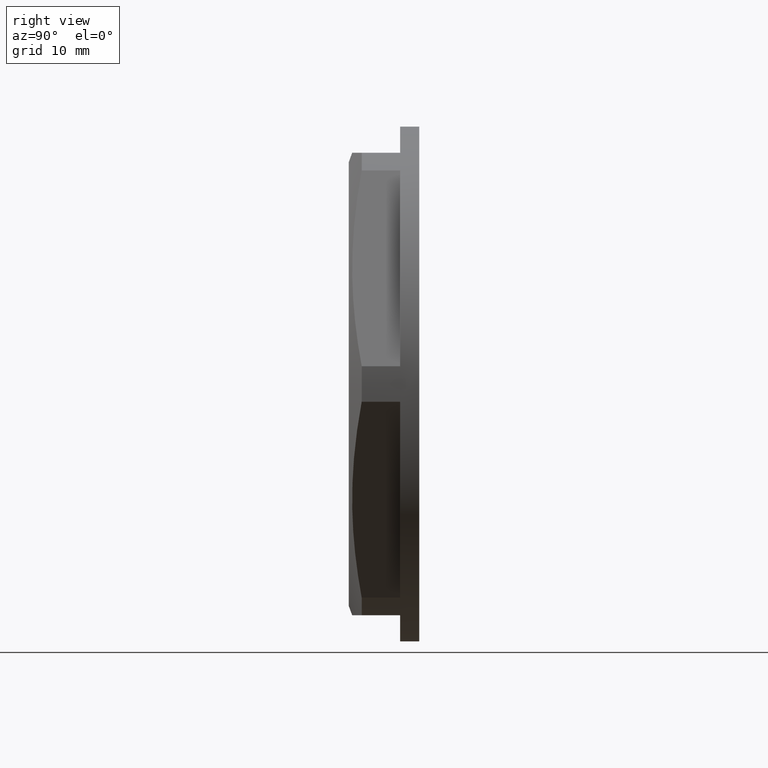
[diagram: clean part render]
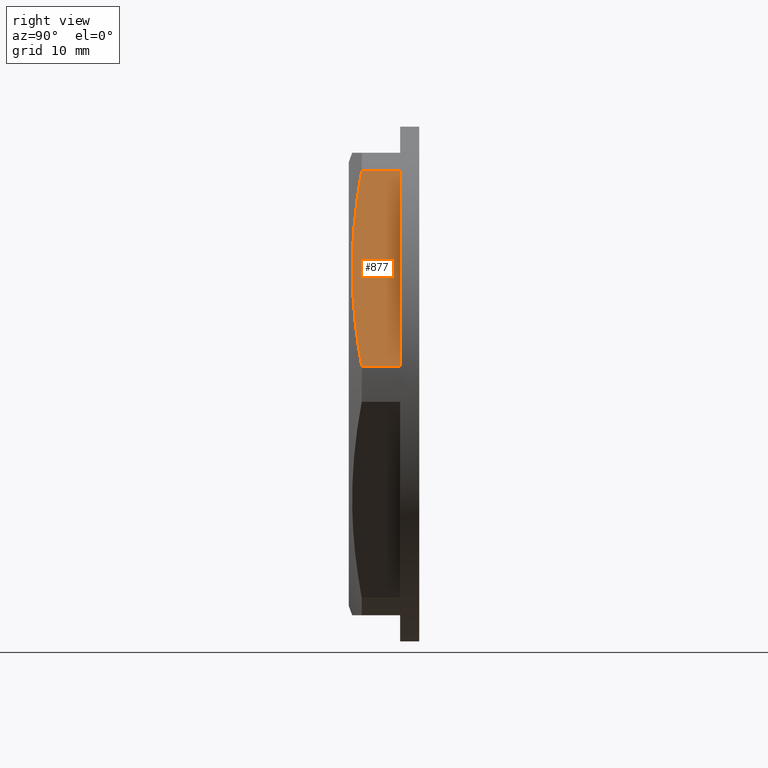
[diagram: same view with one face highlighted and labeled with its STEP entity id]
A machine part, right view. The second image highlights one B-rep face of the part: STEP entity #877.
In plain terms, the highlighted planar face has unit normal (0.866, -0, 0.5).
Its self-contained STEP definition (entity closure, byte-faithful):
#108 = FACE_OUTER_BOUND ( 'NONE', #2493, .T. ) ;
#111 = PLANE ( 'NONE',  #175 ) ;
#112 = DIRECTION ( 'NONE',  ( 0.5000000000000004400, 0.0000000000000000000, -0.8660254037844383700 ) ) ;
#113 = CARTESIAN_POINT ( 'NONE',  ( 14.96132950238554200, -37.00000000000000000, 20.08621715308905200 ) ) ;
#115 = DIRECTION ( 'NONE',  ( 0.8660254037844383700, -0.0000000000000000000, 0.5000000000000004400 ) ) ;
#175 = AXIS2_PLACEMENT_3D ( 'NONE', #113, #115, #112 ) ;
#214 = VECTOR ( 'NONE', #1455, 1000.000000000000000 ) ;
#243 = VECTOR ( 'NONE', #1635, 1000.000000000000000 ) ;
#254 = VECTOR ( 'NONE', #355, 1000.000000000000100 ) ;
#353 = CARTESIAN_POINT ( 'NONE',  ( 14.96132950238554200, -31.89999999999999900, 20.08621715308905200 ) ) ;
#355 = DIRECTION ( 'NONE',  ( -0.5000000000000004400, 0.0000000000000000000, 0.8660254037844383700 ) ) ;
#395 = LINE ( 'NONE', #353, #254 ) ;
#413 = CARTESIAN_POINT ( 'NONE',  ( 25.53908248560255200, -35.71761219396304200, 1.765011556219710200 ) ) ;
#418 = CARTESIAN_POINT ( 'NONE',  ( 14.29808608848352600, -35.71761219396795900, 21.23498844375277600 ) ) ;
#425 = CARTESIAN_POINT ( 'NONE',  ( 14.29808608848352800, -31.89999999999999900, 21.23498844375277300 ) ) ;
#457 = CARTESIAN_POINT ( 'NONE',  ( 25.53908248560064800, -31.89999999999999900, 1.765011556247246600 ) ) ;
#800 = ORIENTED_EDGE ( 'NONE', *, *, #973, .T. ) ;
#801 = ORIENTED_EDGE ( 'NONE', *, *, #949, .T. ) ;
#805 = ORIENTED_EDGE ( 'NONE', *, *, #929, .F. ) ;
#832 = ORIENTED_EDGE ( 'NONE', *, *, #923, .T. ) ;
#877 = ADVANCED_FACE ( 'NONE', ( #108 ), #111, .T. ) ;
#923 = EDGE_CURVE ( 'NONE', #1084, #1106, #1225, .T. ) ;
#929 = EDGE_CURVE ( 'NONE', #1113, #1106, #1405, .T. ) ;
#949 = EDGE_CURVE ( 'NONE', #1094, #1084, #1669, .T. ) ;
#973 = EDGE_CURVE ( 'NONE', #1113, #1094, #395, .T. ) ;
#1084 = VERTEX_POINT ( 'NONE', #418 ) ;
#1094 = VERTEX_POINT ( 'NONE', #425 ) ;
#1106 = VERTEX_POINT ( 'NONE', #413 ) ;
#1113 = VERTEX_POINT ( 'NONE', #457 ) ;
#1225 = B_SPLINE_CURVE_WITH_KNOTS ( 'NONE', 3,
 ( #1429, #1388, #1398, #1417, #1385, #1411, #1378, #1389, #1400, #1381, #1399, #1390, #1391 ),
 .UNSPECIFIED., .F., .F.,
 ( 4, 2, 2, 1, 2, 2, 4 ),
 ( -0.001445990239411276700, 0.001364997063227870200, 0.004175984365867017000, 0.009797958971145300300, 0.01541993357642358600, 0.01823092087906272700, 0.02104190818170186700 ),
 .UNSPECIFIED. ) ;
#1378 = CARTESIAN_POINT ( 'NONE',  ( 19.91858428704836800, -36.74843624623415600, 11.49999999998912900 ) ) ;
#1381 = CARTESIAN_POINT ( 'NONE',  ( 23.66656735723389100, -36.23638297811599800, 5.008302896519818900 ) ) ;
#1385 = CARTESIAN_POINT ( 'NONE',  ( 16.63909910063603400, -36.33650146985352300, 17.18023496552478900 ) ) ;
#1388 = CARTESIAN_POINT ( 'NONE',  ( 14.76469674752608300, -35.86675948256386400, 20.42679507493787100 ) ) ;
#1389 = CARTESIAN_POINT ( 'NONE',  ( 21.79257582214113100, -36.57943335988524300, 8.254151448254475600 ) ) ;
#1390 = CARTESIAN_POINT ( 'NONE',  ( 25.07247182657063100, -35.86675948256012000, 2.573204925040430100 ) ) ;
#1391 = CARTESIAN_POINT ( 'NONE',  ( 25.53908248560255200, -35.71761219396304200, 1.765011556219710200 ) ) ;
#1398 = CARTESIAN_POINT ( 'NONE',  ( 15.23360544931645500, -36.00158386829571800, 19.61462137932577600 ) ) ;
#1399 = CARTESIAN_POINT ( 'NONE',  ( 24.60356312478028700, -36.00158386829225800, 3.385378620652492300 ) ) ;
#1400 = CARTESIAN_POINT ( 'NONE',  ( 23.19806947346070900, -36.33650146985102200, 5.819765034453484800 ) ) ;
#1405 = LINE ( 'NONE', #1416, #214 ) ;
#1411 = CARTESIAN_POINT ( 'NONE',  ( 18.04459275195559400, -36.57943335988672100, 14.74584855172379100 ) ) ;
#1416 = CARTESIAN_POINT ( 'NONE',  ( 25.53908248560064500, -37.00000000000000000, 1.765011556247262100 ) ) ;
#1417 = CARTESIAN_POINT ( 'NONE',  ( 16.17060121686283800, -36.23638297811884000, 17.99169710345845600 ) ) ;
#1429 = CARTESIAN_POINT ( 'NONE',  ( 14.29808608848352600, -35.71761219396795900, 21.23498844375277600 ) ) ;
#1455 = DIRECTION ( 'NONE',  ( -0.0000000000000000000, -1.000000000000000000, -0.0000000000000000000 ) ) ;
#1635 = DIRECTION ( 'NONE',  ( -0.0000000000000000000, -1.000000000000000000, -0.0000000000000000000 ) ) ;
#1649 = CARTESIAN_POINT ( 'NONE',  ( 14.29808608848353800, -37.00000000000000000, 21.23498844375276600 ) ) ;
#1669 = LINE ( 'NONE', #1649, #243 ) ;
#2493 = EDGE_LOOP ( 'NONE', ( #805, #800, #801, #832 ) ) ;